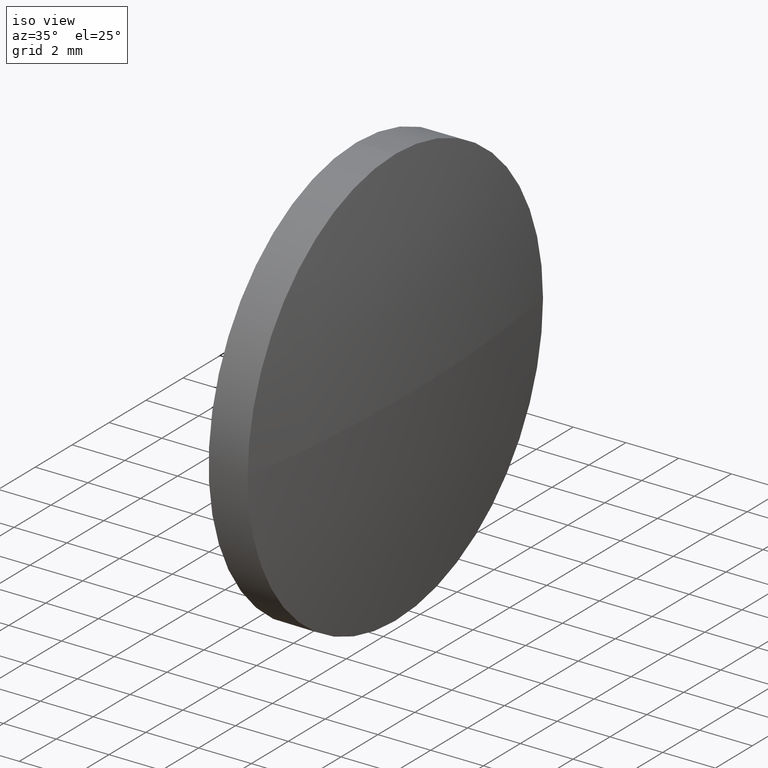
[diagram: clean part render]
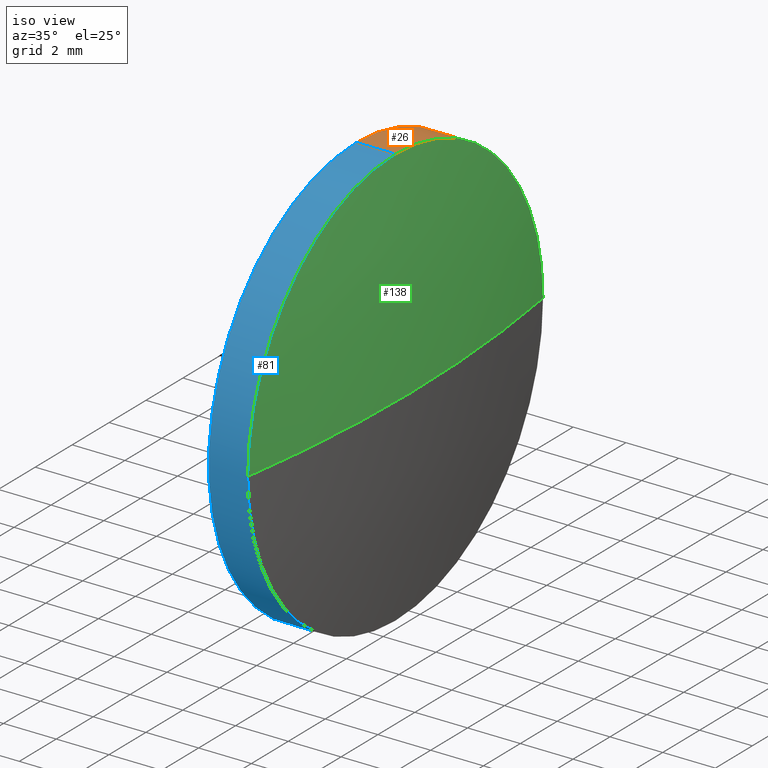
[diagram: same view with three faces highlighted in distinct colors, each labeled with its STEP entity id]
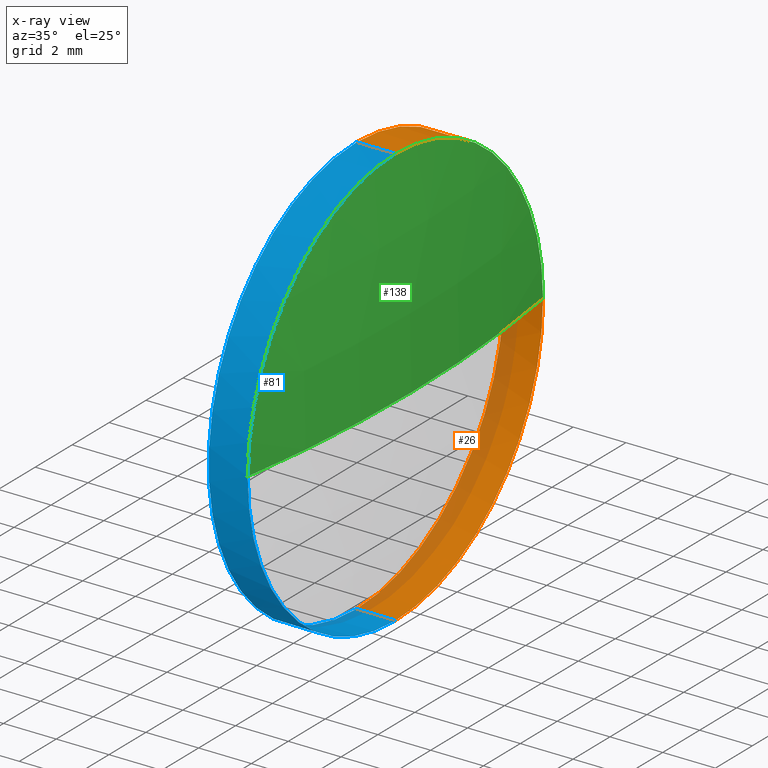
[diagram: x-ray of the same camera — body ghosted, the three highlighted faces saturated]
A machine part, iso view with three faces highlighted in distinct colors.
The next image is the same camera in x-ray (body ghosted, the three faces saturated) — at least one of them is partly hidden behind the body in this view.
Their STEP definitions:

[orange] entity #26 — the highlighted cylindrical surface (partial cylindrical patch) has radius 8 mm, axis along (-1, -0, -0).
#2 = AXIS2_PLACEMENT_3D ( 'NONE', #72, #83, #22 ) ;
#4 = EDGE_LOOP ( 'NONE', ( #104, #123, #32, #55, #110 ) ) ;
#6 = LINE ( 'NONE', #92, #36 ) ;
#9 = CIRCLE ( 'NONE', #56, 8.000000000000007100 ) ;
#11 = DIRECTION ( 'NONE',  ( -1.000000000000000000, -0.0000000000000000000, -0.0000000000000000000 ) ) ;
#22 = DIRECTION ( 'NONE',  ( 0.0000000000000000000, 0.0000000000000000000, 1.000000000000000000 ) ) ;
#25 = CARTESIAN_POINT ( 'NONE',  ( 458.9341660365616900, 156.5683746678373000, 0.0000000000000000000 ) ) ;
#26 = ADVANCED_FACE ( 'NONE', ( #102 ), #162, .T. ) ;
#29 = EDGE_CURVE ( 'NONE', #176, #143, #70, .T. ) ;
#32 = ORIENTED_EDGE ( 'NONE', *, *, #142, .F. ) ;
#35 = VERTEX_POINT ( 'NONE', #181 ) ;
#36 = VECTOR ( 'NONE', #71, 1000.000000000000000 ) ;
#37 = AXIS2_PLACEMENT_3D ( 'NONE', #25, #48, #155 ) ;
#48 = DIRECTION ( 'NONE',  ( -1.000000000000000000, -0.0000000000000000000, -0.0000000000000000000 ) ) ;
#51 = DIRECTION ( 'NONE',  ( 0.0000000000000000000, 0.0000000000000000000, 1.000000000000000000 ) ) ;
#52 = CARTESIAN_POINT ( 'NONE',  ( 460.5821385095532000, 156.5683746678373000, 8.000000000000007100 ) ) ;
#55 = ORIENTED_EDGE ( 'NONE', *, *, #175, .F. ) ;
#56 = AXIS2_PLACEMENT_3D ( 'NONE', #141, #11, #51 ) ;
#70 = LINE ( 'NONE', #168, #164 ) ;
#71 = DIRECTION ( 'NONE',  ( -1.000000000000000000, -0.0000000000000000000, -0.0000000000000000000 ) ) ;
#72 = CARTESIAN_POINT ( 'NONE',  ( 460.5821385095532000, 156.5683746678373000, 0.0000000000000000000 ) ) ;
#74 = CARTESIAN_POINT ( 'NONE',  ( 462.0621385095531700, 156.5683746678373000, 0.0000000000000000000 ) ) ;
#83 = DIRECTION ( 'NONE',  ( -1.000000000000000000, -0.0000000000000000000, -0.0000000000000000000 ) ) ;
#92 = CARTESIAN_POINT ( 'NONE',  ( 458.9341660365616900, 156.5683746678373000, 8.000000000000007100 ) ) ;
#99 = VERTEX_POINT ( 'NONE', #100 ) ;
#100 = CARTESIAN_POINT ( 'NONE',  ( 462.0621385095531700, 164.5683746678373000, 0.0000000000000000000 ) ) ;
#102 = FACE_OUTER_BOUND ( 'NONE', #4, .T. ) ;
#104 = ORIENTED_EDGE ( 'NONE', *, *, #153, .T. ) ;
#110 = ORIENTED_EDGE ( 'NONE', *, *, #113, .T. ) ;
#113 = EDGE_CURVE ( 'NONE', #35, #99, #9, .T. ) ;
#122 = AXIS2_PLACEMENT_3D ( 'NONE', #74, #179, #150 ) ;
#123 = ORIENTED_EDGE ( 'NONE', *, *, #29, .T. ) ;
#134 = CIRCLE ( 'NONE', #122, 8.000000000000007100 ) ;
#141 = CARTESIAN_POINT ( 'NONE',  ( 462.0621385095531700, 156.5683746678373000, 0.0000000000000000000 ) ) ;
#142 = EDGE_CURVE ( 'NONE', #158, #143, #184, .T. ) ;
#143 = VERTEX_POINT ( 'NONE', #163 ) ;
#146 = CARTESIAN_POINT ( 'NONE',  ( 462.0621385095531700, 156.5683746678373000, -8.000000000000007100 ) ) ;
#150 = DIRECTION ( 'NONE',  ( 0.0000000000000000000, 0.0000000000000000000, 1.000000000000000000 ) ) ;
#153 = EDGE_CURVE ( 'NONE', #99, #176, #134, .T. ) ;
#155 = DIRECTION ( 'NONE',  ( 0.0000000000000000000, 0.0000000000000000000, 1.000000000000000000 ) ) ;
#157 = DIRECTION ( 'NONE',  ( -1.000000000000000000, -0.0000000000000000000, -0.0000000000000000000 ) ) ;
#158 = VERTEX_POINT ( 'NONE', #52 ) ;
#162 = CYLINDRICAL_SURFACE ( 'NONE', #37, 8.000000000000007100 ) ;
#163 = CARTESIAN_POINT ( 'NONE',  ( 460.5821385095532000, 156.5683746678373000, -8.000000000000007100 ) ) ;
#164 = VECTOR ( 'NONE', #157, 1000.000000000000000 ) ;
#168 = CARTESIAN_POINT ( 'NONE',  ( 458.9341660365616900, 156.5683746678373000, -8.000000000000007100 ) ) ;
#175 = EDGE_CURVE ( 'NONE', #35, #158, #6, .T. ) ;
#176 = VERTEX_POINT ( 'NONE', #146 ) ;
#179 = DIRECTION ( 'NONE',  ( -1.000000000000000000, -0.0000000000000000000, -0.0000000000000000000 ) ) ;
#181 = CARTESIAN_POINT ( 'NONE',  ( 462.0621385095531700, 156.5683746678373000, 8.000000000000007100 ) ) ;
#184 = CIRCLE ( 'NONE', #2, 8.000000000000007100 ) ;

[blue] entity #81 — the highlighted cylindrical surface (partial cylindrical patch) has radius 8 mm, axis along (-1, -0, -0).
#6 = LINE ( 'NONE', #92, #36 ) ;
#7 = CARTESIAN_POINT ( 'NONE',  ( 462.0621385095531700, 148.5683746678372800, -9.797174393178857200E-016 ) ) ;
#10 = VERTEX_POINT ( 'NONE', #7 ) ;
#12 = CARTESIAN_POINT ( 'NONE',  ( 458.9341660365616900, 156.5683746678373000, 0.0000000000000000000 ) ) ;
#13 = CARTESIAN_POINT ( 'NONE',  ( 462.0621385095531700, 156.5683746678373000, 0.0000000000000000000 ) ) ;
#29 = EDGE_CURVE ( 'NONE', #176, #143, #70, .T. ) ;
#35 = VERTEX_POINT ( 'NONE', #181 ) ;
#36 = VECTOR ( 'NONE', #71, 1000.000000000000000 ) ;
#38 = CARTESIAN_POINT ( 'NONE',  ( 460.5821385095532000, 156.5683746678373000, 0.0000000000000000000 ) ) ;
#40 = CIRCLE ( 'NONE', #137, 8.000000000000007100 ) ;
#41 = CIRCLE ( 'NONE', #93, 8.000000000000007100 ) ;
#46 = CYLINDRICAL_SURFACE ( 'NONE', #103, 8.000000000000007100 ) ;
#52 = CARTESIAN_POINT ( 'NONE',  ( 460.5821385095532000, 156.5683746678373000, 8.000000000000007100 ) ) ;
#57 = ORIENTED_EDGE ( 'NONE', *, *, #29, .F. ) ;
#58 = ORIENTED_EDGE ( 'NONE', *, *, #175, .T. ) ;
#60 = DIRECTION ( 'NONE',  ( 0.0000000000000000000, 0.0000000000000000000, 1.000000000000000000 ) ) ;
#64 = EDGE_CURVE ( 'NONE', #143, #158, #40, .T. ) ;
#65 = ORIENTED_EDGE ( 'NONE', *, *, #128, .T. ) ;
#66 = DIRECTION ( 'NONE',  ( -1.000000000000000000, -0.0000000000000000000, -0.0000000000000000000 ) ) ;
#67 = DIRECTION ( 'NONE',  ( 0.0000000000000000000, 0.0000000000000000000, 1.000000000000000000 ) ) ;
#70 = LINE ( 'NONE', #168, #164 ) ;
#71 = DIRECTION ( 'NONE',  ( -1.000000000000000000, -0.0000000000000000000, -0.0000000000000000000 ) ) ;
#79 = DIRECTION ( 'NONE',  ( 0.0000000000000000000, 0.0000000000000000000, 1.000000000000000000 ) ) ;
#81 = ADVANCED_FACE ( 'NONE', ( #116 ), #46, .T. ) ;
#87 = EDGE_CURVE ( 'NONE', #10, #35, #41, .T. ) ;
#89 = DIRECTION ( 'NONE',  ( -1.000000000000000000, -0.0000000000000000000, -0.0000000000000000000 ) ) ;
#92 = CARTESIAN_POINT ( 'NONE',  ( 458.9341660365616900, 156.5683746678373000, 8.000000000000007100 ) ) ;
#93 = AXIS2_PLACEMENT_3D ( 'NONE', #182, #121, #139 ) ;
#103 = AXIS2_PLACEMENT_3D ( 'NONE', #12, #66, #67 ) ;
#112 = ORIENTED_EDGE ( 'NONE', *, *, #87, .T. ) ;
#115 = AXIS2_PLACEMENT_3D ( 'NONE', #13, #151, #60 ) ;
#116 = FACE_OUTER_BOUND ( 'NONE', #147, .T. ) ;
#117 = ORIENTED_EDGE ( 'NONE', *, *, #64, .F. ) ;
#121 = DIRECTION ( 'NONE',  ( -1.000000000000000000, -0.0000000000000000000, -0.0000000000000000000 ) ) ;
#125 = CIRCLE ( 'NONE', #115, 8.000000000000007100 ) ;
#128 = EDGE_CURVE ( 'NONE', #176, #10, #125, .T. ) ;
#137 = AXIS2_PLACEMENT_3D ( 'NONE', #38, #89, #79 ) ;
#139 = DIRECTION ( 'NONE',  ( 0.0000000000000000000, 0.0000000000000000000, 1.000000000000000000 ) ) ;
#143 = VERTEX_POINT ( 'NONE', #163 ) ;
#146 = CARTESIAN_POINT ( 'NONE',  ( 462.0621385095531700, 156.5683746678373000, -8.000000000000007100 ) ) ;
#147 = EDGE_LOOP ( 'NONE', ( #57, #65, #112, #58, #117 ) ) ;
#151 = DIRECTION ( 'NONE',  ( -1.000000000000000000, -0.0000000000000000000, -0.0000000000000000000 ) ) ;
#157 = DIRECTION ( 'NONE',  ( -1.000000000000000000, -0.0000000000000000000, -0.0000000000000000000 ) ) ;
#158 = VERTEX_POINT ( 'NONE', #52 ) ;
#163 = CARTESIAN_POINT ( 'NONE',  ( 460.5821385095532000, 156.5683746678373000, -8.000000000000007100 ) ) ;
#164 = VECTOR ( 'NONE', #157, 1000.000000000000000 ) ;
#168 = CARTESIAN_POINT ( 'NONE',  ( 458.9341660365616900, 156.5683746678373000, -8.000000000000007100 ) ) ;
#175 = EDGE_CURVE ( 'NONE', #35, #158, #6, .T. ) ;
#176 = VERTEX_POINT ( 'NONE', #146 ) ;
#181 = CARTESIAN_POINT ( 'NONE',  ( 462.0621385095531700, 156.5683746678373000, 8.000000000000007100 ) ) ;
#182 = CARTESIAN_POINT ( 'NONE',  ( 462.0621385095531700, 156.5683746678373000, 0.0000000000000000000 ) ) ;

[green] entity #138 — the highlighted spherical surface has radius 51.9229 mm.
#3 = CARTESIAN_POINT ( 'NONE',  ( 410.7592352837468800, 156.5683746678373000, 0.0000000000000000000 ) ) ;
#7 = CARTESIAN_POINT ( 'NONE',  ( 462.0621385095531700, 148.5683746678372800, -9.797174393178857200E-016 ) ) ;
#8 = CARTESIAN_POINT ( 'NONE',  ( 462.6821385095531700, 156.5683746678373000, 0.0000000000000000000 ) ) ;
#9 = CIRCLE ( 'NONE', #56, 8.000000000000007100 ) ;
#10 = VERTEX_POINT ( 'NONE', #7 ) ;
#11 = DIRECTION ( 'NONE',  ( -1.000000000000000000, -0.0000000000000000000, -0.0000000000000000000 ) ) ;
#15 = AXIS2_PLACEMENT_3D ( 'NONE', #3, #33, #47 ) ;
#23 = DIRECTION ( 'NONE',  ( 0.0000000000000000000, 1.224646799147353200E-016, -1.000000000000000000 ) ) ;
#24 = VERTEX_POINT ( 'NONE', #8 ) ;
#33 = DIRECTION ( 'NONE',  ( -0.0000000000000000000, 0.0000000000000000000, 1.000000000000000000 ) ) ;
#35 = VERTEX_POINT ( 'NONE', #181 ) ;
#41 = CIRCLE ( 'NONE', #93, 8.000000000000007100 ) ;
#42 = FACE_OUTER_BOUND ( 'NONE', #185, .T. ) ;
#45 = DIRECTION ( 'NONE',  ( 0.0000000000000000000, 1.000000000000000000, 1.224646799147353200E-016 ) ) ;
#47 = DIRECTION ( 'NONE',  ( 1.000000000000000000, 0.0000000000000000000, 0.0000000000000000000 ) ) ;
#51 = DIRECTION ( 'NONE',  ( 0.0000000000000000000, 0.0000000000000000000, 1.000000000000000000 ) ) ;
#56 = AXIS2_PLACEMENT_3D ( 'NONE', #141, #11, #51 ) ;
#62 = ORIENTED_EDGE ( 'NONE', *, *, #160, .F. ) ;
#75 = ORIENTED_EDGE ( 'NONE', *, *, #87, .F. ) ;
#76 = DIRECTION ( 'NONE',  ( 0.0000000000000000000, 1.000000000000000000, 0.0000000000000000000 ) ) ;
#84 = CIRCLE ( 'NONE', #86, 51.92290322580633700 ) ;
#86 = AXIS2_PLACEMENT_3D ( 'NONE', #165, #23, #45 ) ;
#87 = EDGE_CURVE ( 'NONE', #10, #35, #41, .T. ) ;
#93 = AXIS2_PLACEMENT_3D ( 'NONE', #182, #121, #139 ) ;
#99 = VERTEX_POINT ( 'NONE', #100 ) ;
#100 = CARTESIAN_POINT ( 'NONE',  ( 462.0621385095531700, 164.5683746678373000, 0.0000000000000000000 ) ) ;
#107 = ORIENTED_EDGE ( 'NONE', *, *, #113, .F. ) ;
#111 = CARTESIAN_POINT ( 'NONE',  ( 410.7592352837468800, 156.5683746678373000, 0.0000000000000000000 ) ) ;
#113 = EDGE_CURVE ( 'NONE', #35, #99, #9, .T. ) ;
#121 = DIRECTION ( 'NONE',  ( -1.000000000000000000, -0.0000000000000000000, -0.0000000000000000000 ) ) ;
#126 = CIRCLE ( 'NONE', #15, 51.92290322580633700 ) ;
#131 = DIRECTION ( 'NONE',  ( -0.0000000000000000000, 0.0000000000000000000, -1.000000000000000000 ) ) ;
#132 = EDGE_CURVE ( 'NONE', #24, #99, #126, .T. ) ;
#138 = ADVANCED_FACE ( 'NONE', ( #42 ), #177, .T. ) ;
#139 = DIRECTION ( 'NONE',  ( 0.0000000000000000000, 0.0000000000000000000, 1.000000000000000000 ) ) ;
#141 = CARTESIAN_POINT ( 'NONE',  ( 462.0621385095531700, 156.5683746678373000, 0.0000000000000000000 ) ) ;
#152 = AXIS2_PLACEMENT_3D ( 'NONE', #111, #131, #76 ) ;
#160 = EDGE_CURVE ( 'NONE', #24, #10, #84, .T. ) ;
#165 = CARTESIAN_POINT ( 'NONE',  ( 410.7592352837468800, 156.5683746678373000, 0.0000000000000000000 ) ) ;
#173 = ORIENTED_EDGE ( 'NONE', *, *, #132, .T. ) ;
#177 = SPHERICAL_SURFACE ( 'NONE', #152, 51.92290322580633700 ) ;
#181 = CARTESIAN_POINT ( 'NONE',  ( 462.0621385095531700, 156.5683746678373000, 8.000000000000007100 ) ) ;
#182 = CARTESIAN_POINT ( 'NONE',  ( 462.0621385095531700, 156.5683746678373000, 0.0000000000000000000 ) ) ;
#185 = EDGE_LOOP ( 'NONE', ( #62, #173, #107, #75 ) ) ;